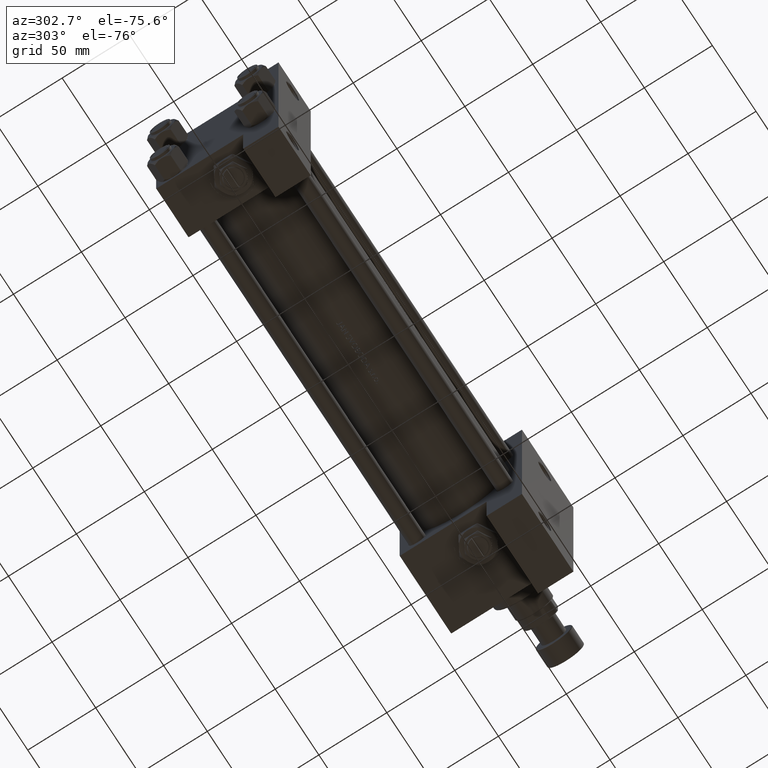
[diagram: clean part render]
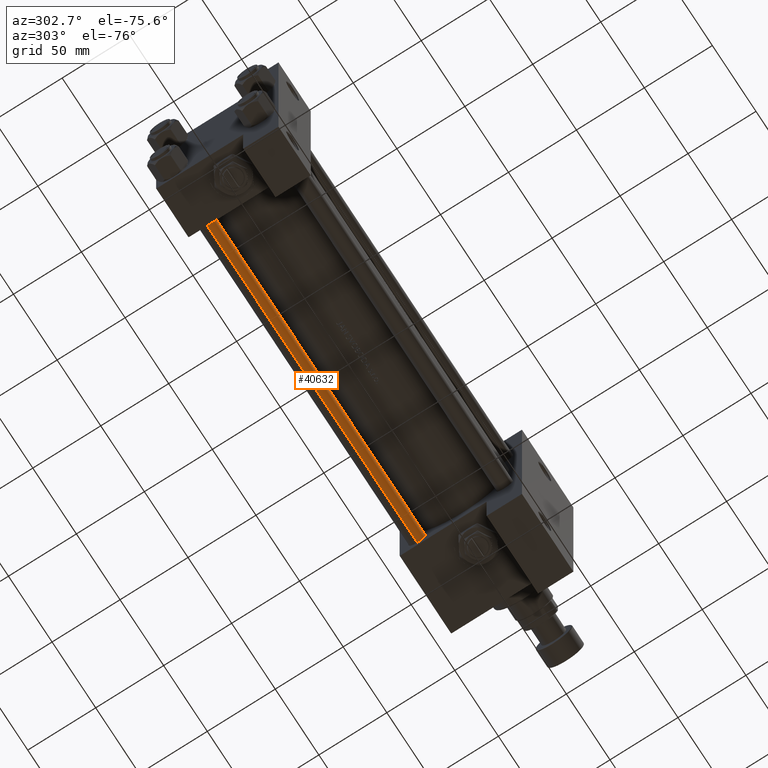
[diagram: same view with one face highlighted and labeled with its STEP entity id]
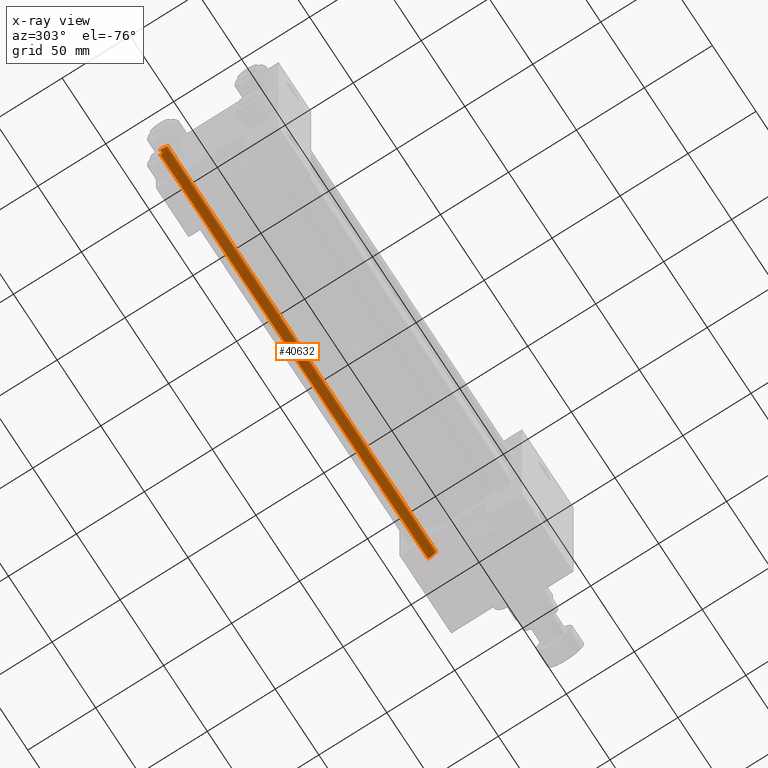
[diagram: x-ray of the same camera — body ghosted, the highlighted face saturated]
A machine part, auxiliary view. The second image highlights one B-rep face of the part: STEP entity #40632.
The next image is the same camera in x-ray: the body ghosted, the highlighted face saturated — about 0% of this face is hidden behind the body in this view.
In plain terms, the highlighted cylindrical surface (edge-blend (fillet) strip) has radius 6 mm, axis along (1, -0, -0).
Its self-contained STEP definition (entity closure, byte-faithful):
#502 = AXIS2_PLACEMENT_3D ( 'NONE', #16013, #20815, #28175 ) ;
#1022 = CYLINDRICAL_SURFACE ( 'NONE', #502, 6.000000000000000888 ) ;
#4171 = EDGE_LOOP ( 'NONE', ( #36205, #17264, #22654, #22579 ) ) ;
#5885 = CARTESIAN_POINT ( 'NONE',  ( 6.000000000000000888, 7.347880794884120722E-16, 307.4999999999999432 ) ) ;
#6802 = CARTESIAN_POINT ( 'NONE',  ( -6.000000000000000888, 0.000000000000000000, 0.5000000000000559552 ) ) ;
#7782 = CARTESIAN_POINT ( 'NONE',  ( -6.000000000000000888, 0.000000000000000000, 307.4999999999999432 ) ) ;
#8499 = CARTESIAN_POINT ( 'NONE',  ( 6.000000000000000888, 7.347880794884120722E-16, 0.5000000000000559552 ) ) ;
#9948 = CARTESIAN_POINT ( 'NONE',  ( 0.000000000000000000, 0.000000000000000000, 307.4999999999999432 ) ) ;
#10581 = CIRCLE ( 'NONE', #13818, 6.000000000000000888 ) ;
#13378 = DIRECTION ( 'NONE',  ( 1.000000000000000000, 0.000000000000000000, 0.000000000000000000 ) ) ;
#13818 = AXIS2_PLACEMENT_3D ( 'NONE', #24569, #24080, #13378 ) ;
#16013 = CARTESIAN_POINT ( 'NONE',  ( 0.000000000000000000, 0.000000000000000000, 308.0000000000000000 ) ) ;
#17264 = ORIENTED_EDGE ( 'NONE', *, *, #21602, .T. ) ;
#17444 = LINE ( 'NONE', #33148, #24475 ) ;
#20815 = DIRECTION ( 'NONE',  ( -0.000000000000000000, -0.000000000000000000, -1.000000000000000000 ) ) ;
#21602 = EDGE_CURVE ( 'NONE', #35752, #36715, #29906, .T. ) ;
#21620 = DIRECTION ( 'NONE',  ( 1.000000000000000000, 0.000000000000000000, 0.000000000000000000 ) ) ;
#21694 = CARTESIAN_POINT ( 'NONE',  ( -6.000000000000000888, 0.000000000000000000, 308.0000000000000000 ) ) ;
#22579 = ORIENTED_EDGE ( 'NONE', *, *, #48730, .T. ) ;
#22654 = ORIENTED_EDGE ( 'NONE', *, *, #27234, .T. ) ;
#24080 = DIRECTION ( 'NONE',  ( -0.000000000000000000, -0.000000000000000000, 1.000000000000000000 ) ) ;
#24475 = VECTOR ( 'NONE', #48588, 1000.000000000000000 ) ;
#24569 = CARTESIAN_POINT ( 'NONE',  ( 0.000000000000000000, 0.000000000000000000, 0.5000000000000559552 ) ) ;
#24782 = VERTEX_POINT ( 'NONE', #8499 ) ;
#25202 = VERTEX_POINT ( 'NONE', #6802 ) ;
#26872 = EDGE_CURVE ( 'NONE', #35752, #24782, #17444, .T. ) ;
#27234 = EDGE_CURVE ( 'NONE', #36715, #25202, #37380, .T. ) ;
#28175 = DIRECTION ( 'NONE',  ( -1.000000000000000000, 0.000000000000000000, 0.000000000000000000 ) ) ;
#29287 = DIRECTION ( 'NONE',  ( -0.000000000000000000, -0.000000000000000000, -1.000000000000000000 ) ) ;
#29460 = DIRECTION ( 'NONE',  ( 0.000000000000000000, 0.000000000000000000, -1.000000000000000000 ) ) ;
#29906 = CIRCLE ( 'NONE', #32342, 6.000000000000000888 ) ;
#32342 = AXIS2_PLACEMENT_3D ( 'NONE', #9948, #29460, #21620 ) ;
#33148 = CARTESIAN_POINT ( 'NONE',  ( 6.000000000000000888, 7.347880794884120722E-16, 308.0000000000000000 ) ) ;
#35752 = VERTEX_POINT ( 'NONE', #5885 ) ;
#36205 = ORIENTED_EDGE ( 'NONE', *, *, #26872, .F. ) ;
#36715 = VERTEX_POINT ( 'NONE', #7782 ) ;
#37380 = LINE ( 'NONE', #21694, #39874 ) ;
#39874 = VECTOR ( 'NONE', #29287, 1000.000000000000000 ) ;
#40632 = ADVANCED_FACE ( 'NONE', ( #43861 ), #1022, .T. ) ;
#43861 = FACE_OUTER_BOUND ( 'NONE', #4171, .T. ) ;
#48588 = DIRECTION ( 'NONE',  ( -0.000000000000000000, -0.000000000000000000, -1.000000000000000000 ) ) ;
#48730 = EDGE_CURVE ( 'NONE', #25202, #24782, #10581, .T. ) ;